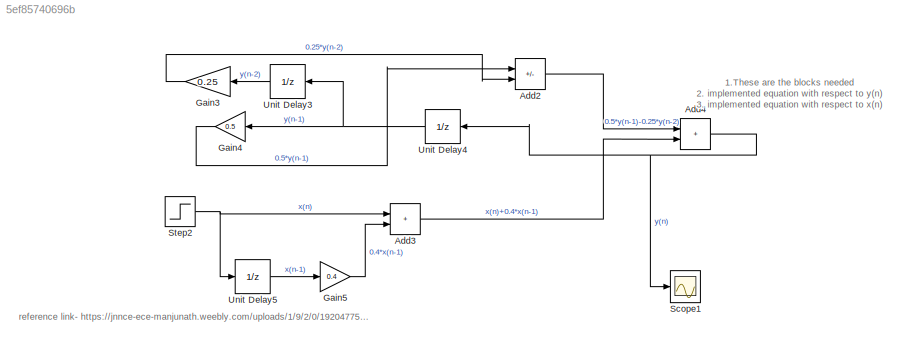
MODEL slx_5ef85740696b
KIND model
CONFIG AbsTol = auto
CONFIG EnableMultiTasking = off
CONFIG FixedStep = auto
CONFIG MaxStep = auto
CONFIG MinStep = auto
CONFIG RelTol = 1e-3
CONFIG SampleTimeConstraint = Unconstrained
CONFIG Solver = VariableStepAuto
CONFIG SolverName = VariableStepAuto
CONFIG StartTime = 0.0
CONFIG StopTime = 10.0
BLOCK [Sum] Add2
  IconShape = rectangular
  Inputs = +-
  Ports = [2, 1]
BLOCK [Sum] Add3
  IconShape = rectangular
  Ports = [2, 1]
BLOCK [Sum] Add4
  IconShape = rectangular
  Ports = [2, 1]
BLOCK [Gain] Gain3
  Gain = 0.25
  NameLocation = top
BLOCK [Gain] Gain4
  Gain = 0.5
  NameLocation = top
BLOCK [Gain] Gain5
  Gain = 0.4
BLOCK [Scope] Scope1
  Floating = off
  NumInputPorts = 1
  Ports = [1]
  ScopeSpecificationString = Simulink.scopes.TimeScopeBlockCfg('CurrentConfiguration', extmgr.ConfigurationSet(extmgr.Configuration('Core','General UI',true),extmgr.Configuration('Core','Source UI',true),extmgr.Configuration('Sources','WiredSimulink',true,'DataLoggingVariableName','ScopeData1'),extmgr.Configuration('Visuals','Time Domain',true,'SerializedDisplays',{struct('MinYLimReal','-0.2625','MaxYLimReal','2.3625','YLabel...<+1437ch>
BLOCK [Step] Step2
  SampleTime = 0.01
BLOCK [UnitDelay] Unit Delay3
  HasFrameUpgradeWarning = on
  NameLocation = top
  SampleTime = -1
BLOCK [UnitDelay] Unit Delay4
  HasFrameUpgradeWarning = on
  NameLocation = top
  SampleTime = -1
BLOCK [UnitDelay] Unit Delay5
  HasFrameUpgradeWarning = on
  SampleTime = -1
ANNOTATION (root): 1.These are the blocks needed 2. implemented equation with respect to y(n) 3. implemented equation with respect to x(n)
ANNOTATION (root): reference link- https://jnnce-ece-manjunath.weebly.com/uploads/1/9/2/0/19204775/discrete-time-systems.pdf
LINE Add2:1 -> Add4:1
LINE Add3:1 -> Add4:2
NET Add4:1 -> Scope1:1, Unit Delay4:1
LINE Gain3:1 -> Add2:2
LINE Gain4:1 -> Add2:1
LINE Gain5:1 -> Add3:2
NET Step2:1 -> Add3:1, Unit Delay5:1
LINE Unit Delay3:1 -> Gain3:1
NET Unit Delay4:1 -> Gain4:1, Unit Delay3:1
LINE Unit Delay5:1 -> Gain5:1
note: NET lines group one-source signal fan-out (src -> all destinations, sorted); 1:1 wires keep LINE
